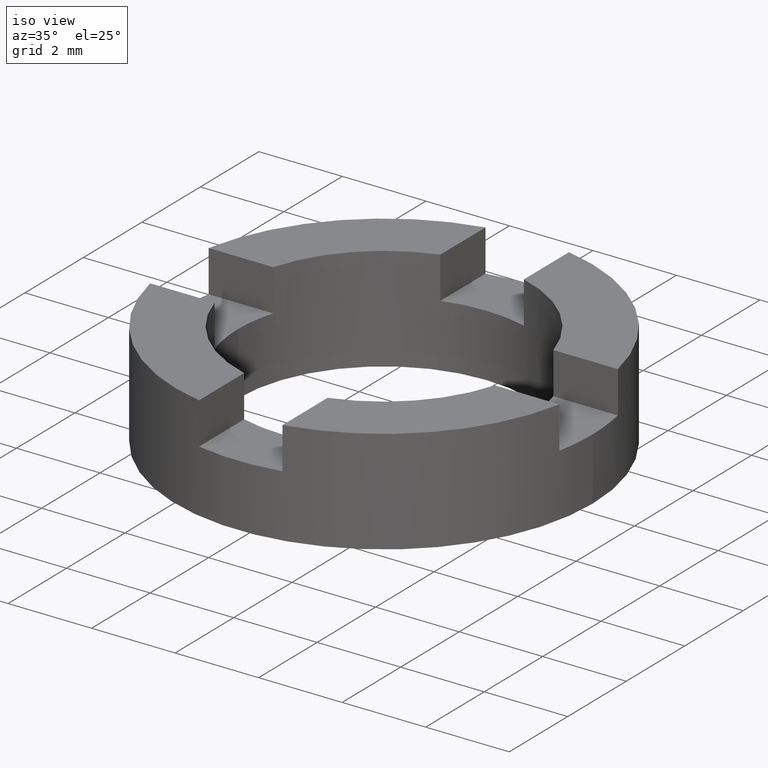
[diagram: clean part render]
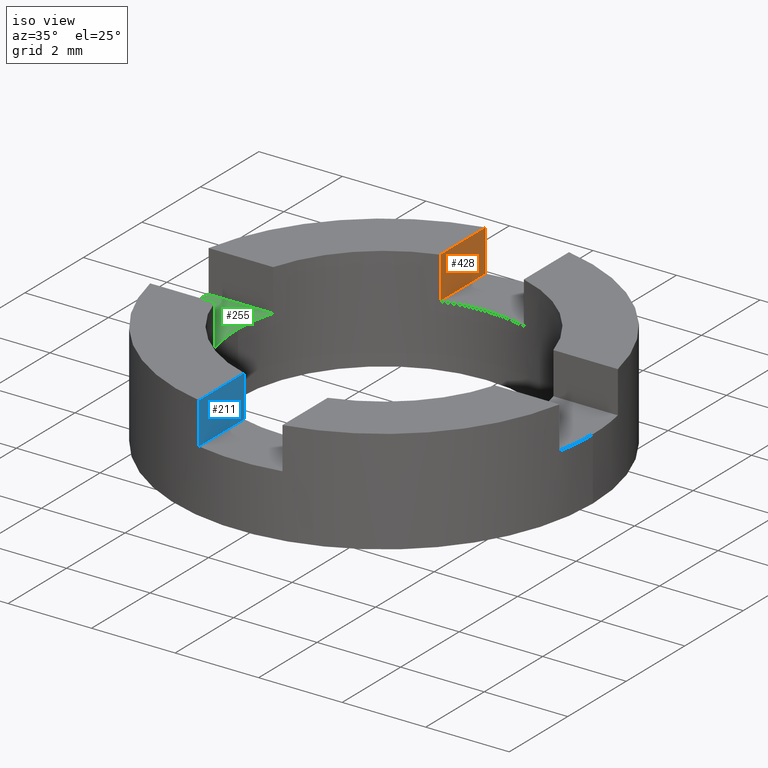
[diagram: same view with three faces highlighted in distinct colors, each labeled with its STEP entity id]
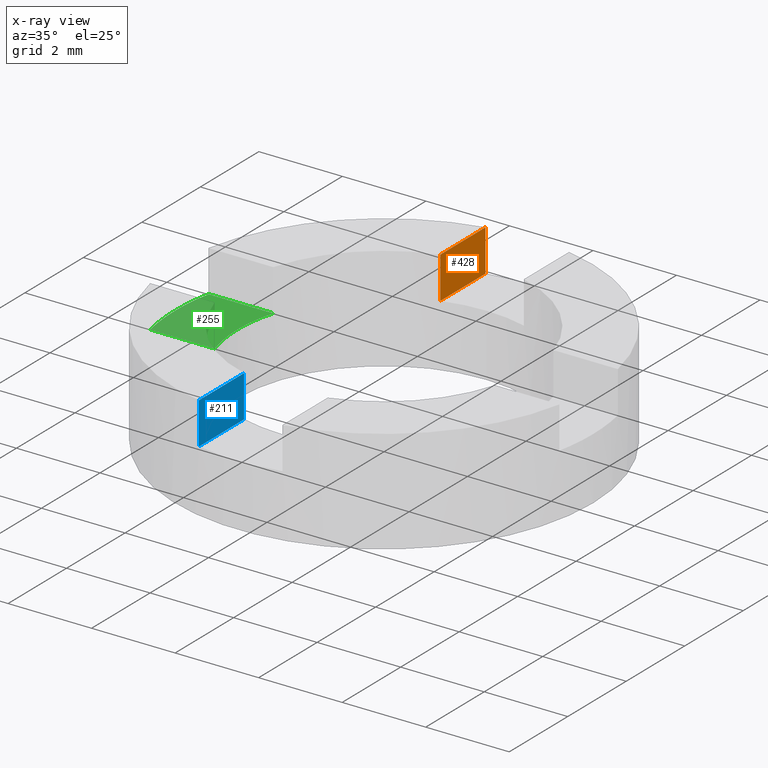
[diagram: x-ray of the same camera — body ghosted, the three highlighted faces saturated]
A machine part, iso view with three faces highlighted in distinct colors.
The next image is the same camera in x-ray (body ghosted, the three faces saturated) — at least one of them is partly hidden behind the body in this view.
Their STEP definitions:

[orange] entity #428 — the highlighted planar face has unit normal (-1, 0, 0).
#80 = EDGE_LOOP ( 'NONE', ( #402, #408, #441, #664 ) ) ;
#104 = FACE_OUTER_BOUND ( 'NONE', #80, .T. ) ;
#116 = VECTOR ( 'NONE', #483, 1000.000000000000000 ) ;
#142 = DIRECTION ( 'NONE',  ( -0.000000000000000000, -0.000000000000000000, -1.000000000000000000 ) ) ;
#180 = EDGE_CURVE ( 'NONE', #550, #707, #665, .T. ) ;
#213 = DIRECTION ( 'NONE',  ( 0.000000000000000000, 0.000000000000000000, 1.000000000000000000 ) ) ;
#259 = LINE ( 'NONE', #533, #525 ) ;
#264 = CARTESIAN_POINT ( 'NONE',  ( -1.000000000000000000, 3.305037895305897422, 1.500000000000000000 ) ) ;
#319 = PLANE ( 'NONE',  #362 ) ;
#321 = CARTESIAN_POINT ( 'NONE',  ( -1.000000000000000000, 3.354101966249684708, 1.500000000000000000 ) ) ;
#344 = CARTESIAN_POINT ( 'NONE',  ( -1.000000000000000000, 3.354101966249684708, 2.500000000000000000 ) ) ;
#351 = CARTESIAN_POINT ( 'NONE',  ( -1.000000000000000000, 3.354101966249684708, 2.500000000000000000 ) ) ;
#356 = VERTEX_POINT ( 'NONE', #528 ) ;
#362 = AXIS2_PLACEMENT_3D ( 'NONE', #264, #724, #213 ) ;
#400 = VERTEX_POINT ( 'NONE', #560 ) ;
#402 = ORIENTED_EDGE ( 'NONE', *, *, #551, .T. ) ;
#408 = ORIENTED_EDGE ( 'NONE', *, *, #180, .T. ) ;
#428 = ADVANCED_FACE ( 'NONE', ( #104 ), #319, .F. ) ;
#441 = ORIENTED_EDGE ( 'NONE', *, *, #667, .F. ) ;
#483 = DIRECTION ( 'NONE',  ( -0.000000000000000000, -0.000000000000000000, -1.000000000000000000 ) ) ;
#525 = VECTOR ( 'NONE', #586, 1000.000000000000000 ) ;
#527 = VECTOR ( 'NONE', #142, 1000.000000000000000 ) ;
#528 = CARTESIAN_POINT ( 'NONE',  ( -1.000000000000000000, 4.898979485566356651, 2.500000000000000000 ) ) ;
#529 = VECTOR ( 'NONE', #607, 1000.000000000000000 ) ;
#531 = CARTESIAN_POINT ( 'NONE',  ( -1.000000000000000000, 4.898979485566356651, 2.500000000000000000 ) ) ;
#533 = CARTESIAN_POINT ( 'NONE',  ( -1.000000000000000000, 3.305037895305897422, 2.500000000000000000 ) ) ;
#550 = VERTEX_POINT ( 'NONE', #344 ) ;
#551 = EDGE_CURVE ( 'NONE', #356, #550, #259, .T. ) ;
#560 = CARTESIAN_POINT ( 'NONE',  ( -1.000000000000000000, 4.898979485566356651, 1.500000000000000000 ) ) ;
#585 = CARTESIAN_POINT ( 'NONE',  ( -1.000000000000000000, 3.305037895305897422, 1.500000000000000000 ) ) ;
#586 = DIRECTION ( 'NONE',  ( -0.000000000000000000, -1.000000000000000000, -0.000000000000000000 ) ) ;
#607 = DIRECTION ( 'NONE',  ( -0.000000000000000000, -1.000000000000000000, -0.000000000000000000 ) ) ;
#664 = ORIENTED_EDGE ( 'NONE', *, *, #666, .F. ) ;
#665 = LINE ( 'NONE', #351, #116 ) ;
#666 = EDGE_CURVE ( 'NONE', #356, #400, #765, .T. ) ;
#667 = EDGE_CURVE ( 'NONE', #400, #707, #767, .T. ) ;
#707 = VERTEX_POINT ( 'NONE', #321 ) ;
#724 = DIRECTION ( 'NONE',  ( -1.000000000000000000, 0.000000000000000000, 0.000000000000000000 ) ) ;
#765 = LINE ( 'NONE', #531, #527 ) ;
#767 = LINE ( 'NONE', #585, #529 ) ;

[blue] entity #211 — the highlighted planar face has unit normal (-1, -0, 0).
#16 = DIRECTION ( 'NONE',  ( 1.279323200775837961E-16, -1.000000000000000000, 0.000000000000000000 ) ) ;
#26 = ORIENTED_EDGE ( 'NONE', *, *, #468, .T. ) ;
#67 = DIRECTION ( 'NONE',  ( 0.000000000000000000, 0.000000000000000000, 1.000000000000000000 ) ) ;
#125 = LINE ( 'NONE', #486, #660 ) ;
#200 = CARTESIAN_POINT ( 'NONE',  ( -0.9999999999996526112, -3.354101966249788180, 2.500000000000000000 ) ) ;
#211 = ADVANCED_FACE ( 'NONE', ( #364 ), #600, .F. ) ;
#214 = CARTESIAN_POINT ( 'NONE',  ( -0.9999999999996523892, -4.898979485566426817, 2.500000000000000000 ) ) ;
#233 = DIRECTION ( 'NONE',  ( 0.000000000000000000, 0.000000000000000000, 1.000000000000000000 ) ) ;
#248 = VECTOR ( 'NONE', #478, 1000.000000000000000 ) ;
#249 = DIRECTION ( 'NONE',  ( -1.000000000000000000, -1.279323200775837961E-16, 0.000000000000000000 ) ) ;
#284 = ORIENTED_EDGE ( 'NONE', *, *, #733, .F. ) ;
#286 = EDGE_CURVE ( 'NONE', #659, #349, #625, .T. ) ;
#306 = AXIS2_PLACEMENT_3D ( 'NONE', #595, #249, #16 ) ;
#333 = CARTESIAN_POINT ( 'NONE',  ( -0.9999999999996523892, -4.898979485566426817, 2.500000000000000000 ) ) ;
#349 = VERTEX_POINT ( 'NONE', #566 ) ;
#359 = VERTEX_POINT ( 'NONE', #333 ) ;
#364 = FACE_OUTER_BOUND ( 'NONE', #636, .T. ) ;
#449 = CARTESIAN_POINT ( 'NONE',  ( -0.9999999999996526112, -3.354101966249788180, 1.500000000000000000 ) ) ;
#468 = EDGE_CURVE ( 'NONE', #659, #573, #125, .T. ) ;
#478 = DIRECTION ( 'NONE',  ( 1.279323200775837961E-16, -1.000000000000000000, 0.000000000000000000 ) ) ;
#486 = CARTESIAN_POINT ( 'NONE',  ( -0.9999999999996526112, -3.354101966249788180, 2.500000000000000000 ) ) ;
#487 = LINE ( 'NONE', #214, #757 ) ;
#557 = EDGE_CURVE ( 'NONE', #573, #359, #769, .T. ) ;
#566 = CARTESIAN_POINT ( 'NONE',  ( -0.9999999999996523892, -4.898979485566426817, 1.500000000000000000 ) ) ;
#573 = VERTEX_POINT ( 'NONE', #200 ) ;
#595 = CARTESIAN_POINT ( 'NONE',  ( -0.9999999999996526112, -3.305037895306154550, 1.500000000000000000 ) ) ;
#597 = ORIENTED_EDGE ( 'NONE', *, *, #286, .F. ) ;
#600 = PLANE ( 'NONE',  #306 ) ;
#605 = VECTOR ( 'NONE', #736, 1000.000000000000000 ) ;
#625 = LINE ( 'NONE', #693, #605 ) ;
#636 = EDGE_LOOP ( 'NONE', ( #597, #26, #650, #284 ) ) ;
#650 = ORIENTED_EDGE ( 'NONE', *, *, #557, .T. ) ;
#659 = VERTEX_POINT ( 'NONE', #449 ) ;
#660 = VECTOR ( 'NONE', #233, 1000.000000000000000 ) ;
#687 = CARTESIAN_POINT ( 'NONE',  ( -0.9999999999996526112, -3.305037895306154550, 2.500000000000000000 ) ) ;
#693 = CARTESIAN_POINT ( 'NONE',  ( -0.9999999999996526112, -3.305037895306154550, 1.500000000000000000 ) ) ;
#733 = EDGE_CURVE ( 'NONE', #349, #359, #487, .T. ) ;
#736 = DIRECTION ( 'NONE',  ( 1.279323200775837961E-16, -1.000000000000000000, 0.000000000000000000 ) ) ;
#757 = VECTOR ( 'NONE', #67, 1000.000000000000000 ) ;
#769 = LINE ( 'NONE', #687, #248 ) ;

[green] entity #255 — the highlighted planar face has unit normal (0, 0, -1).
#27 = CARTESIAN_POINT ( 'NONE',  ( -3.305037895305853013, 0.9999999999996979083, 1.500000000000000000 ) ) ;
#41 = CARTESIAN_POINT ( 'NONE',  ( -4.898979485566417935, 0.9999999999996975752, 1.500000000000000000 ) ) ;
#54 = PLANE ( 'NONE',  #575 ) ;
#59 = DIRECTION ( 'NONE',  ( -1.000000000000000000, 0.000000000000000000, 0.000000000000000000 ) ) ;
#77 = DIRECTION ( 'NONE',  ( -1.000000000000000000, -2.558646401551675429E-16, 0.000000000000000000 ) ) ;
#85 = EDGE_CURVE ( 'NONE', #331, #117, #134, .T. ) ;
#88 = VERTEX_POINT ( 'NONE', #41 ) ;
#92 = VECTOR ( 'NONE', #630, 1000.000000000000000 ) ;
#97 = CARTESIAN_POINT ( 'NONE',  ( -3.354101966249774858, 0.9999999999996979083, 1.500000000000000000 ) ) ;
#101 = ORIENTED_EDGE ( 'NONE', *, *, #720, .T. ) ;
#109 = LINE ( 'NONE', #495, #92 ) ;
#117 = VERTEX_POINT ( 'NONE', #97 ) ;
#121 = VERTEX_POINT ( 'NONE', #210 ) ;
#134 = CIRCLE ( 'NONE', #326, 3.500000000000000000 ) ;
#144 = ORIENTED_EDGE ( 'NONE', *, *, #230, .F. ) ;
#145 = VERTEX_POINT ( 'NONE', #332 ) ;
#152 = DIRECTION ( 'NONE',  ( 0.000000000000000000, -0.000000000000000000, -1.000000000000000000 ) ) ;
#179 = EDGE_CURVE ( 'NONE', #363, #145, #658, .T. ) ;
#202 = DIRECTION ( 'NONE',  ( 0.000000000000000000, 0.000000000000000000, -1.000000000000000000 ) ) ;
#207 = CARTESIAN_POINT ( 'NONE',  ( -4.898979485566295367, -1.000000000000302425, 1.500000000000000000 ) ) ;
#210 = CARTESIAN_POINT ( 'NONE',  ( -3.354101966249594557, -1.000000000000301981, 1.500000000000000000 ) ) ;
#229 = VECTOR ( 'NONE', #77, 1000.000000000000000 ) ;
#230 = EDGE_CURVE ( 'NONE', #145, #88, #633, .T. ) ;
#240 = CIRCLE ( 'NONE', #385, 3.500000000000000000 ) ;
#246 = CARTESIAN_POINT ( 'NONE',  ( 0.000000000000000000, 0.000000000000000000, 1.500000000000000000 ) ) ;
#250 = EDGE_CURVE ( 'NONE', #363, #121, #109, .T. ) ;
#255 = ADVANCED_FACE ( 'NONE', ( #345 ), #54, .F. ) ;
#279 = DIRECTION ( 'NONE',  ( -1.000000000000000000, 0.000000000000000000, 0.000000000000000000 ) ) ;
#282 = EDGE_LOOP ( 'NONE', ( #416, #403, #615, #626, #101, #144 ) ) ;
#296 = CARTESIAN_POINT ( 'NONE',  ( 0.000000000000000000, 0.000000000000000000, 1.500000000000000000 ) ) ;
#326 = AXIS2_PLACEMENT_3D ( 'NONE', #688, #579, #530 ) ;
#331 = VERTEX_POINT ( 'NONE', #415 ) ;
#332 = CARTESIAN_POINT ( 'NONE',  ( -5.000000000000000000, 0.000000000000000000, 1.500000000000000000 ) ) ;
#345 = FACE_OUTER_BOUND ( 'NONE', #282, .T. ) ;
#363 = VERTEX_POINT ( 'NONE', #207 ) ;
#385 = AXIS2_PLACEMENT_3D ( 'NONE', #246, #152, #699 ) ;
#398 = CARTESIAN_POINT ( 'NONE',  ( 0.000000000000000000, 0.000000000000000000, 1.500000000000000000 ) ) ;
#403 = ORIENTED_EDGE ( 'NONE', *, *, #250, .T. ) ;
#415 = CARTESIAN_POINT ( 'NONE',  ( -3.500000000000000000, 0.000000000000000000, 1.500000000000000000 ) ) ;
#416 = ORIENTED_EDGE ( 'NONE', *, *, #179, .F. ) ;
#420 = CARTESIAN_POINT ( 'NONE',  ( 0.000000000000000000, 0.000000000000000000, 1.500000000000000000 ) ) ;
#460 = DIRECTION ( 'NONE',  ( -1.000000000000000000, 0.000000000000000000, -0.000000000000000000 ) ) ;
#474 = AXIS2_PLACEMENT_3D ( 'NONE', #398, #703, #59 ) ;
#495 = CARTESIAN_POINT ( 'NONE',  ( -3.305037895305852125, -1.000000000000301981, 1.500000000000000000 ) ) ;
#498 = EDGE_CURVE ( 'NONE', #121, #331, #240, .T. ) ;
#530 = DIRECTION ( 'NONE',  ( -1.000000000000000000, 0.000000000000000000, 0.000000000000000000 ) ) ;
#532 = LINE ( 'NONE', #27, #229 ) ;
#575 = AXIS2_PLACEMENT_3D ( 'NONE', #296, #202, #460 ) ;
#579 = DIRECTION ( 'NONE',  ( 0.000000000000000000, -0.000000000000000000, -1.000000000000000000 ) ) ;
#615 = ORIENTED_EDGE ( 'NONE', *, *, #498, .T. ) ;
#626 = ORIENTED_EDGE ( 'NONE', *, *, #85, .T. ) ;
#630 = DIRECTION ( 'NONE',  ( 1.000000000000000000, 2.558646401551673950E-16, -0.000000000000000000 ) ) ;
#633 = CIRCLE ( 'NONE', #474, 5.000000000000000000 ) ;
#658 = CIRCLE ( 'NONE', #764, 5.000000000000000000 ) ;
#688 = CARTESIAN_POINT ( 'NONE',  ( 0.000000000000000000, 0.000000000000000000, 1.500000000000000000 ) ) ;
#699 = DIRECTION ( 'NONE',  ( -1.000000000000000000, 0.000000000000000000, 0.000000000000000000 ) ) ;
#703 = DIRECTION ( 'NONE',  ( 0.000000000000000000, -0.000000000000000000, -1.000000000000000000 ) ) ;
#720 = EDGE_CURVE ( 'NONE', #117, #88, #532, .T. ) ;
#730 = DIRECTION ( 'NONE',  ( 0.000000000000000000, -0.000000000000000000, -1.000000000000000000 ) ) ;
#764 = AXIS2_PLACEMENT_3D ( 'NONE', #420, #730, #279 ) ;